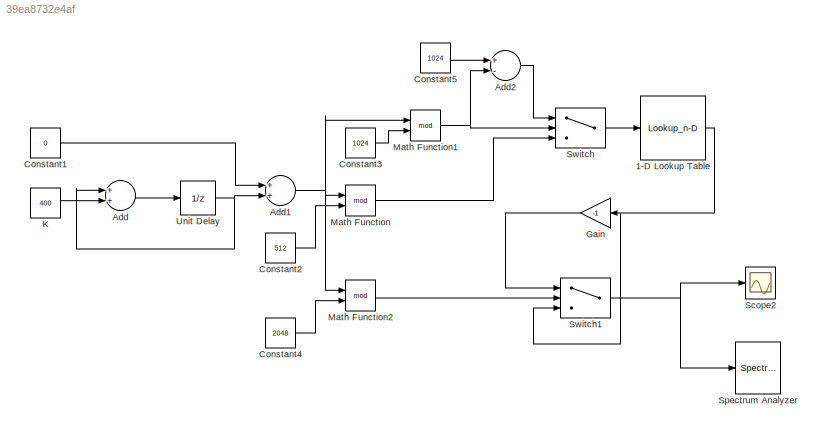
MODEL slx_39ea8732e4af
KIND model
CONFIG AbsTol = auto
CONFIG EnableMultiTasking = off
CONFIG FixedStep = auto
CONFIG MaxStep = auto
CONFIG MinStep = auto
CONFIG RelTol = 1e-3
CONFIG SampleTimeConstraint = Unconstrained
CONFIG Solver = VariableStepAuto
CONFIG SolverName = VariableStepAuto
CONFIG StartTime = 0.0
CONFIG StopTime = 10.0
BLOCK [Lookup_n-D] 1-D Lookup Table
  BreakpointsForDimension1 = [0:512]
  InternalRulePriority = Speed
  NumberOfTableDimensions = 1
  Ports = [1, 1]
  RndMeth = Simplest
  Table = sin([0:512]/1024*pi)
BLOCK [Sum] Add
  InputSameDT = off
  OutDataTypeStr = Inherit: Inherit via internal rule
  Ports = [2, 1]
  SaturateOnIntegerOverflow = off
BLOCK [Sum] Add1
  InputSameDT = off
  OutDataTypeStr = Inherit: Inherit via internal rule
  Ports = [2, 1]
  SaturateOnIntegerOverflow = off
BLOCK [Sum] Add2
  InputSameDT = off
  Inputs = +-
  OutDataTypeStr = Inherit: Inherit via internal rule
  Ports = [2, 1]
  SaturateOnIntegerOverflow = off
BLOCK [Constant] Constant1
  Value = 0
BLOCK [Constant] Constant2
  Value = 512
BLOCK [Constant] Constant3
  Value = 1024
BLOCK [Constant] Constant4
  Value = 2048
BLOCK [Constant] Constant5
  Value = 1024
BLOCK [Gain] Gain
  Gain = -1
  OutDataTypeStr = Inherit: Inherit via internal rule
  ParamDataTypeStr = Inherit: Inherit via internal rule
  SaturateOnIntegerOverflow = off
BLOCK [Constant] K
  Value = 400
BLOCK [Math] Math Function
  Operator = mod
  Ports = [2, 1]
BLOCK [Math] Math Function1
  Operator = mod
  Ports = [2, 1]
BLOCK [Math] Math Function2
  Operator = mod
  Ports = [2, 1]
BLOCK [Scope] Scope2
  Floating = off
  NumInputPorts = 1
  Ports = [1]
  ScopeSpecificationString = Simulink.scopes.TimeScopeBlockCfg('CurrentConfiguration', extmgr.ConfigurationSet(extmgr.Configuration('Core','General UI',true),extmgr.Configuration('Core','Source UI',true),extmgr.Configuration('Sources','WiredSimulink',true),extmgr.Configuration('Visuals','Time Domain',true,'SerializedDisplays',{struct('MinYLimReal','-1.12763','MaxYLimReal','0.12529','YLabelReal','','MinYLimMag','0.00000','MaxY...<+1327ch>
BLOCK [SpectrumAnalyzer] Spectrum Analyzer
  Ports = [1]
  ScopeSpecificationString = spbscopes.SpectrumAnalyzerBlockCfg('CurrentConfiguration', extmgr.ConfigurationSet(extmgr.Configuration('Core','General UI',true),extmgr.Configuration('Core','Source UI',true),extmgr.Configuration('Sources','WiredSimulink',true),extmgr.Configuration('Visuals','Spectrum',true,'AxesProperties',struct('Color',{[0 0 0],[0 0 0]},'XColor',{[0.686274509803922 0.686274509803922 0.686274509803922],[0.68627...<+1617ch>
BLOCK [Switch] Switch
  Criteria = u2 > Threshold
  InputSameDT = off
  SaturateOnIntegerOverflow = off
BLOCK [Switch] Switch1
  Criteria = u2 > Threshold
  InputSameDT = off
  SaturateOnIntegerOverflow = off
BLOCK [UnitDelay] Unit Delay
  InputProcessing = Elements as channels (sample based)
  SampleTime = -1
NET 1-D Lookup Table:1 -> Gain:1, Switch1:3
NET Add1:1 -> Math Function1:1, Math Function2:1, Math Function:1
LINE Add2:1 -> Switch:1
LINE Add:1 -> Unit Delay:1
LINE Constant1:1 -> Add1:1
LINE Constant2:1 -> Math Function:2
LINE Constant3:1 -> Math Function1:2
LINE Constant4:1 -> Math Function2:2
LINE Constant5:1 -> Add2:1
LINE Gain:1 -> Switch1:1
LINE K:1 -> Add:2
NET Math Function1:1 -> Add2:2, Switch:2
LINE Math Function2:1 -> Switch1:2
LINE Math Function:1 -> Switch:3
NET Switch1:1 -> Scope2:1, Spectrum Analyzer:1
LINE Switch:1 -> 1-D Lookup Table:1
NET Unit Delay:1 -> Add1:2, Add:1
note: NET lines group one-source signal fan-out (src -> all destinations, sorted); 1:1 wires keep LINE
